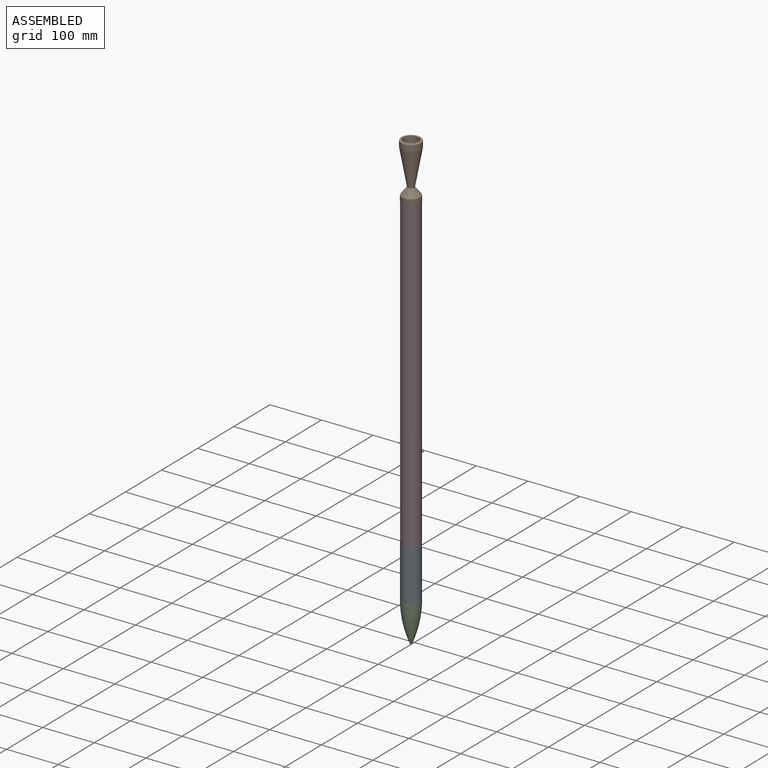
[diagram: assembled view]
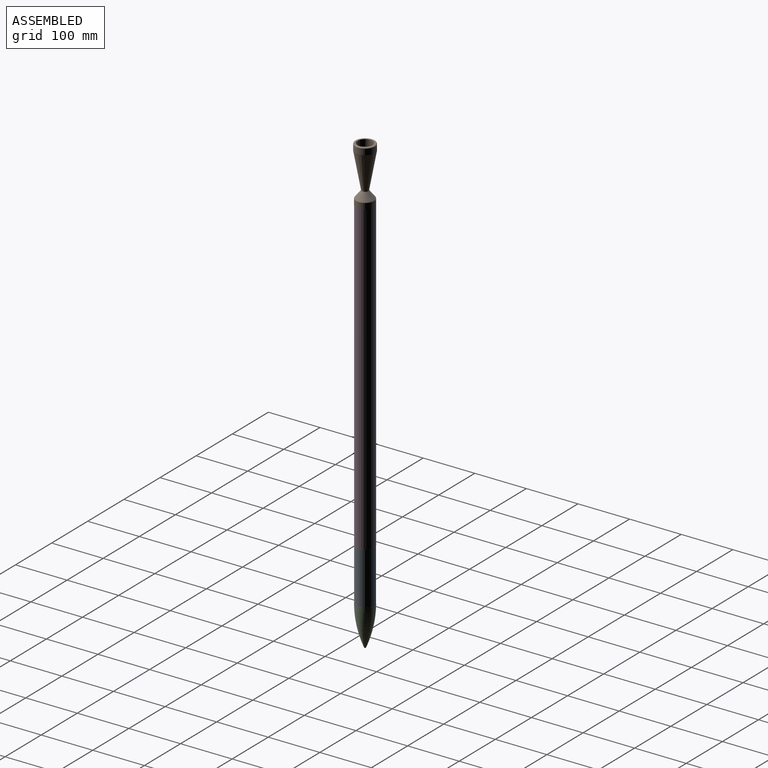
[diagram: assembled view, second angle]
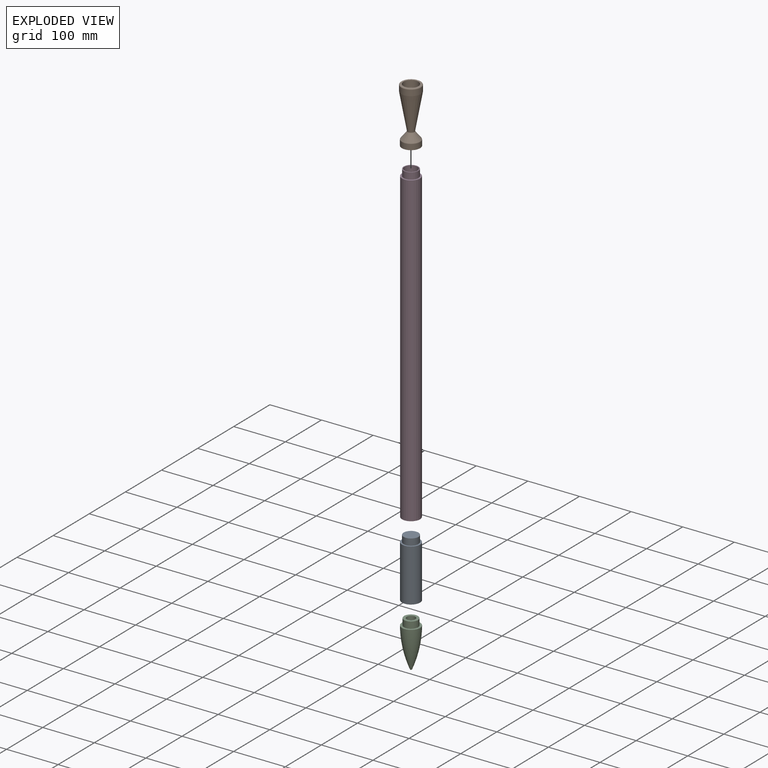
[diagram: exploded view]
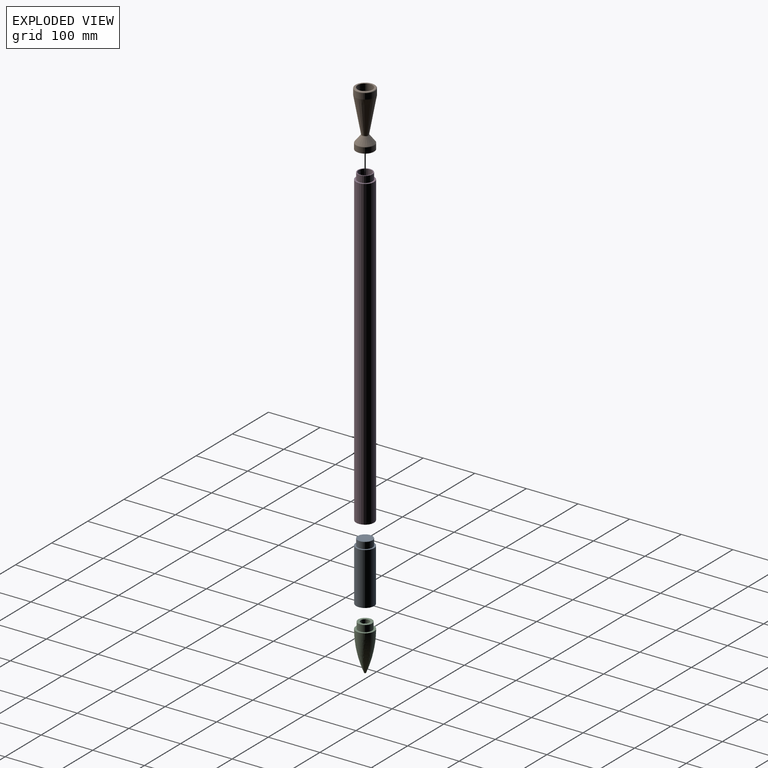
[diagram: exploded view, second angle]
ASSEMBLY  parts=4 mates=3
PART A: 9 faces, bbox 34.9x34.9x114.3 mm
  f0: plane 28.58x28.58mm, normal (0,0,-1), area 150.4mm2, adj f1,f3
  f1: cylinder r=14.29mm len=83.6mm, axis (0,0,-1), area 7504.5mm2, adj f0,f2
  f2: plane 28.58x28.58mm, normal (0,0,1), area 641.3mm2, adj f1
  f3: cylinder r=12.5mm len=25mm, axis (0,0,1), area 997.5mm2, adj f0,f4
  f4: plane 34.93x34.93mm, normal (0,0,1), area 467.1mm2, adj f3,f8
  f5: plane 28.58x28.58mm, normal (0,0,-1), area 641.3mm2, adj f6
  f6: cylinder r=14.29mm len=28.58mm, axis (0,0,-1), area 1140.1mm2, adj f5,f7
  f7: plane 34.93x34.93mm, normal (0,0,-1), area 316.7mm2, adj f6,f8
  f8: cylinder r=17.46mm len=101.6mm, axis (0,0,-1), area 11147.6mm2, adj f4,f7
PART B: 15 faces, bbox 41.2x41.2x108 mm
  f0: cylinder r=14.61mm len=29.21mm, axis (0,0,-1), area 1165.4mm2, adj f1,f10
  f1: cone r=3.17mm half-angle=9.3deg, axis (0,0,1), area 3953.5mm2, adj f0,f2
  f2: cone r=12.83mm half-angle=37.2deg, axis (0,0,-1), area 801.9mm2, adj f1,f3
  f3: plane 28.83x28.83mm, normal (0,0,-1), area 135.9mm2, adj f2,f4
  f4: cylinder r=14.41mm len=28.83mm, axis (0,0,-1), area 1150.2mm2, adj f3,f5
  f5: plane 35.18x35.18mm, normal (0,0,-1), area 319.2mm2, adj f4,f6
  f6: cylinder r=17.59mm len=35.18mm, axis (0,0,-1), area 1182.8mm2, adj f5,f11
  f7: cone r=17.59mm half-angle=38.5deg, axis (0,0,-1), area 1268.3mm2, adj f11,f12
  f8: cone r=6.35mm half-angle=10.3deg, axis (0,0,1), area 5619mm2, adj f12,f13
  f9: cylinder r=19.05mm len=38.1mm, axis (0,0,-1), area 1313mm2, adj f13,f14
  f10: plane 34.93x34.93mm, normal (0,0,1), area 287.9mm2, adj f0,f14
  f11: torus R=16mm, axis (0,0,1), area 117mm2, adj f6,f7
  f12: torus R=8.04mm, axis (0,0,-1), area 55.6mm2, adj f7,f8
  f13: torus R=17.46mm, axis (0,0,1), area 34.2mm2, adj f8,f9
  f14: torus R=17.46mm, axis (0,0,-1), area 289.4mm2, adj f9,f10
PART C: 8 faces, bbox 35.2x35.2x90.6 mm
  f0: plane 27x27mm, normal (0,0,-1), area 349.8mm2, adj f1,f7
  f1: cylinder r=13.5mm len=27mm, axis (0,0,-1), area 1077.3mm2, adj f0,f2
  f2: plane 35.18x35.18mm, normal (0,0,-1), area 399.4mm2, adj f1,f3
  f3: revolved ~76.39x35.18mm, area 6021.2mm2, adj f2,f4
  f4: torus R=0.04mm, axis (0,0,-1), area 19mm2, adj f3
  f5: revolved ~69.42x27mm, area 3920.5mm2, adj f6
  f6: plane 27x27mm, normal (0,0,1), area 349.8mm2, adj f5,f7
  f7: cylinder r=8.42mm len=19.67mm, axis (0,0,-1), area 1040.7mm2, adj f0,f6
PART D: 6 faces, bbox 34.9x34.9x609.6 mm
  f0: cylinder r=17.46mm len=596.9mm, axis (0,0,-1), area 65491.9mm2, adj f3,f5
  f1: plane 28.58x28.58mm, normal (0,0,-1), area 144.7mm2, adj f2,f4
  f2: cylinder r=12.57mm len=609.6mm, axis (0,0,-1), area 48157.5mm2, adj f1,f3
  f3: plane 34.93x34.93mm, normal (0,0,1), area 461.4mm2, adj f0,f2
  f4: cylinder r=14.29mm len=28.58mm, axis (0,0,-1), area 1140.1mm2, adj f1,f5
  f5: plane 34.93x34.93mm, normal (0,0,-1), area 316.7mm2, adj f0,f4
PLACE A rot(axis=(1,0,0),180deg) t=(-52.77,-19.23,-614.13)mm
PLACE B t=(-52.77,-19.23,-4.53)mm
PLACE C rot(axis=(1,0,0),180deg) t=(-52.77,-19.23,-664.93)mm
PLACE D rot(axis=(1,0,0),180deg) t=(-52.77,-19.23,-17.23)mm
MATE fastened A.f1 <-> D.f0  axis (0,0,1) through (-52.77,-19.23,-626.83)mm
MATE fastened C.f1 <-> A.f1  axis (0,0,1) through (-52.77,-19.23,-728.43)mm
MATE fastened D.f4 <-> B.f0  axis (0,0,1) through (-52.77,-19.23,-17.23)mm
